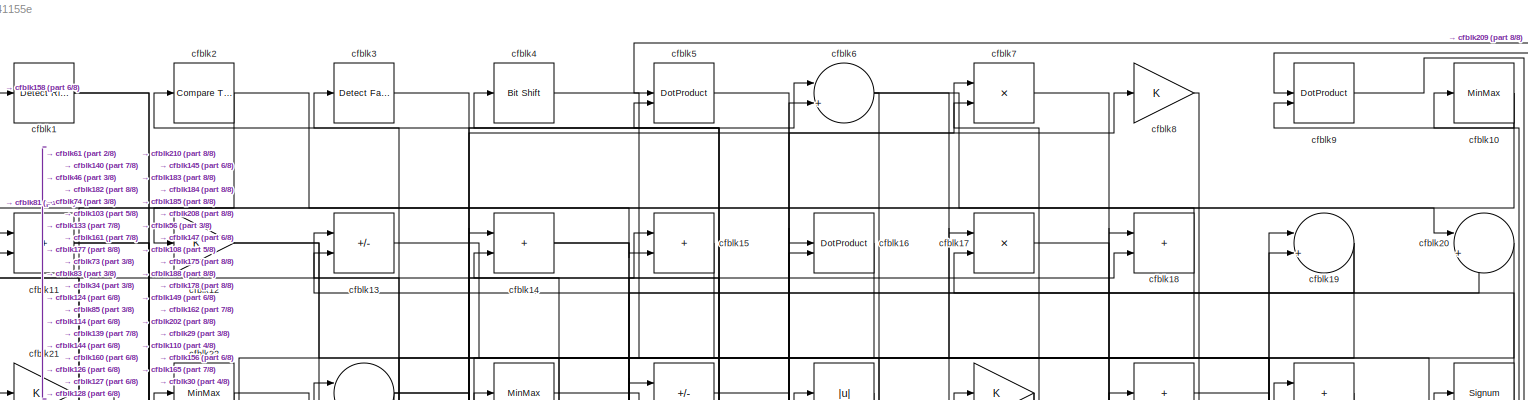
[diagram: root canvas - part 1/8, full width, top band]
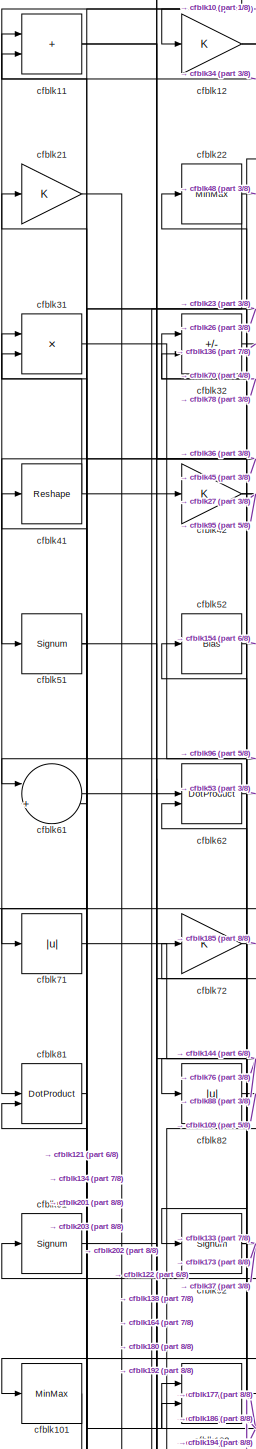
[diagram: root canvas - part 2/8, top left region]
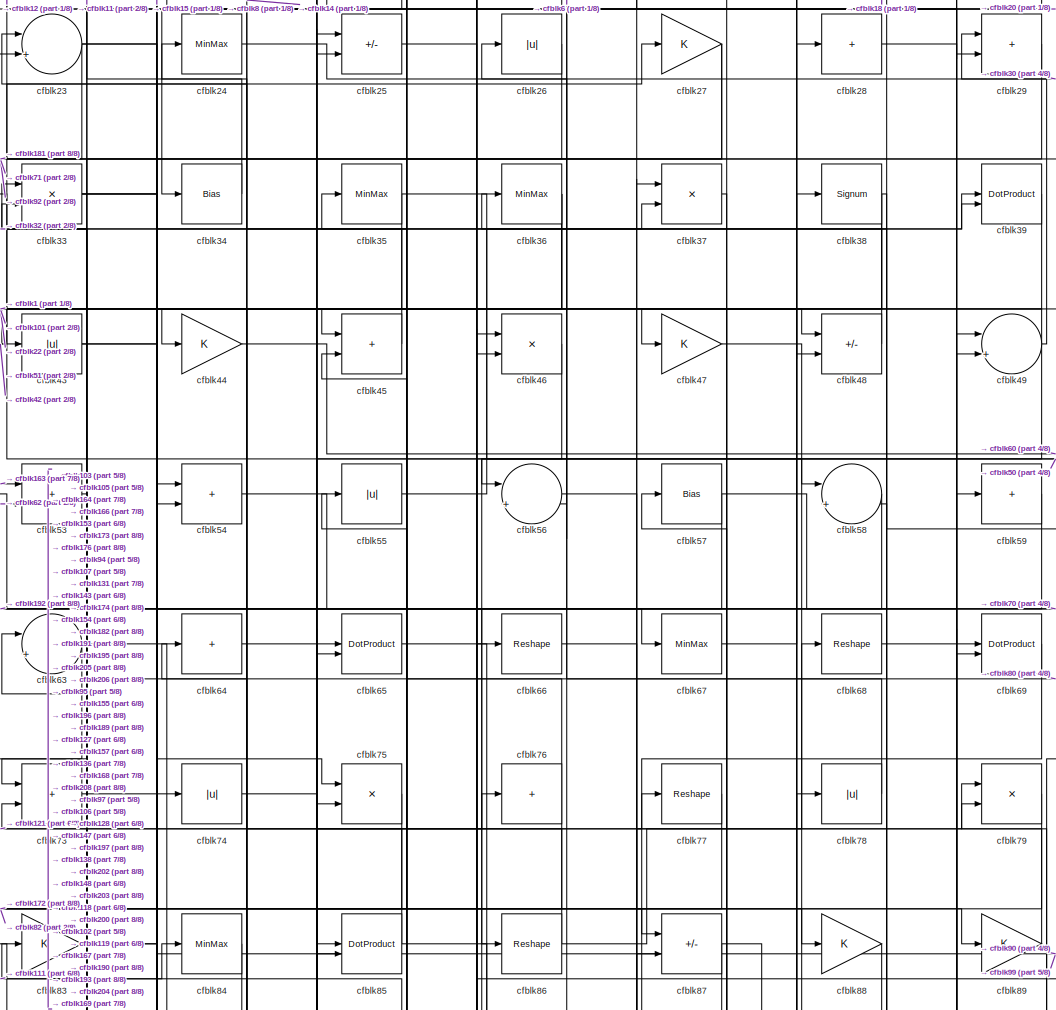
[diagram: root canvas - part 3/8, top center region]
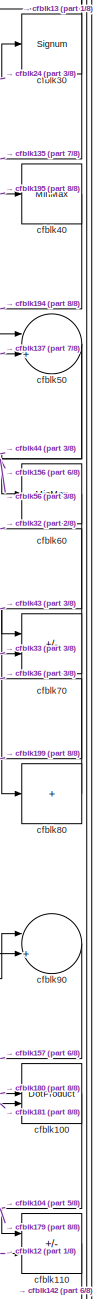
[diagram: root canvas - part 4/8, top right region]
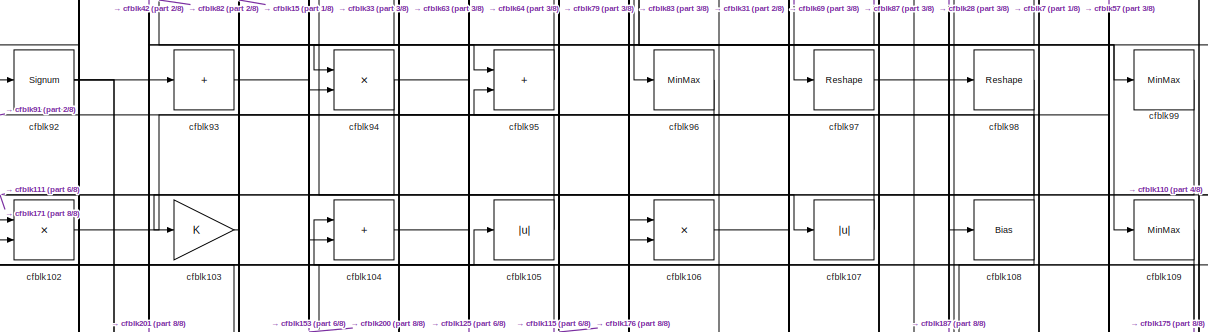
[diagram: root canvas - part 5/8, full width, middle band]
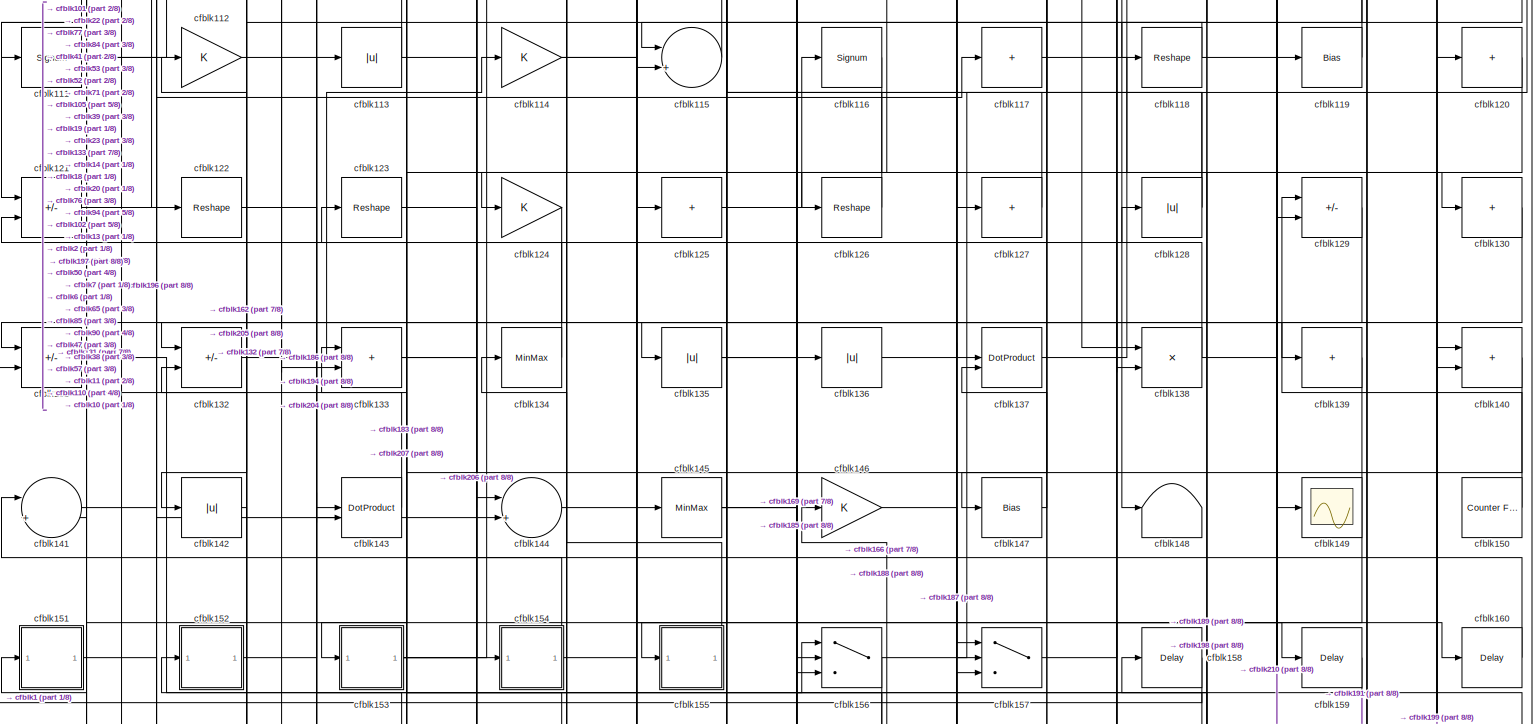
[diagram: root canvas - part 6/8, full width, middle band]
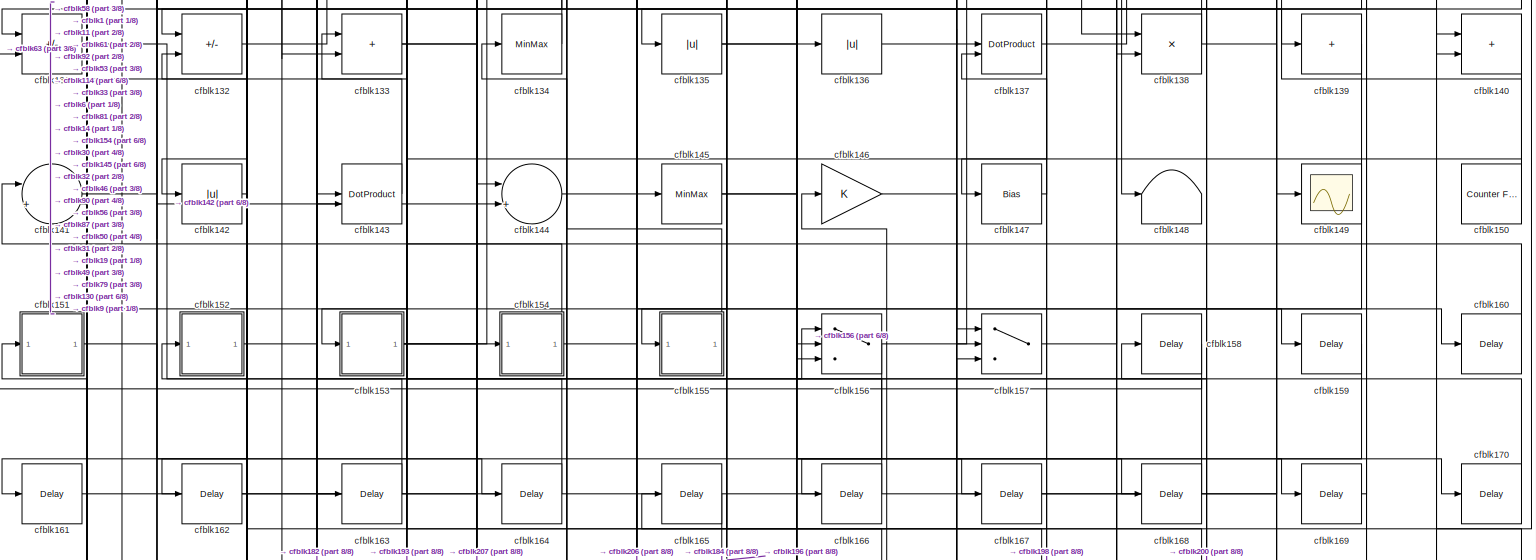
[diagram: root canvas - part 7/8, full width, bottom band]
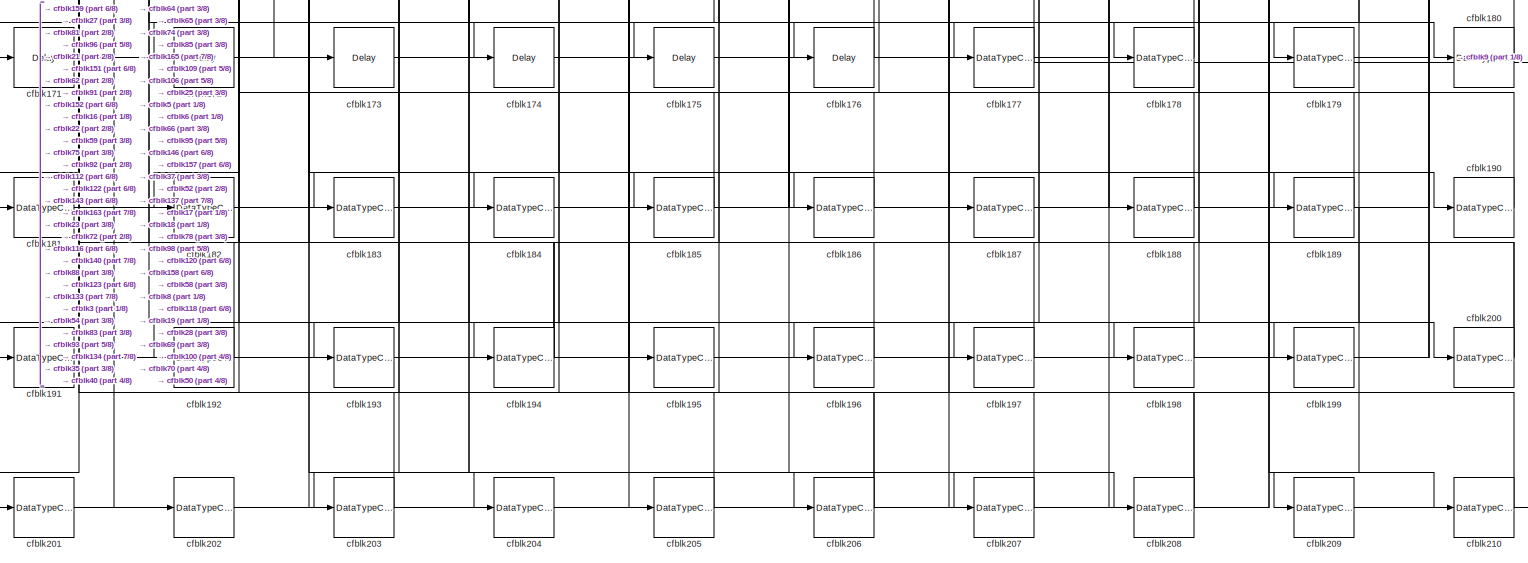
[diagram: root canvas - part 8/8, full width, bottom band]
MODEL slx_6e055541155e
KIND model
CONFIG AbsTol = auto
CONFIG EnableMultiTasking = off
CONFIG FixedStep = auto
CONFIG MaxStep = auto
CONFIG MinStep = auto
CONFIG RelTol = 1e-3
CONFIG SampleTimeConstraint = Unconstrained
CONFIG SolverName = VariableStepAuto
CONFIG StartTime = 0.0
CONFIG StopTime = 10.0
BLOCK [Reference] cfblk1  REF=hdlsllib/Logic and Bit
Operations/Detect Rise
Nonnegative
  SourceBlock = hdlsllib/Logic and Bit\nOperations/Detect Rise\nNonnegative
  SourceType = Detect Rise Nonnegative
BLOCK [MinMax] cfblk10
BLOCK [DotProduct] cfblk100
  OutDataTypeStr = Inherit: Inherit via internal rule
BLOCK [MinMax] cfblk101
BLOCK [Product] cfblk102
  Inputs = */
  RndMeth = Zero
  SaturateOnIntegerOverflow = on
BLOCK [Gain] cfblk103
BLOCK [Sum] cfblk104
  IconShape = rectangular
BLOCK [Abs] cfblk105
  SaturateOnIntegerOverflow = off
BLOCK [Product] cfblk106
  Inputs = */
  RndMeth = Zero
  SaturateOnIntegerOverflow = on
BLOCK [Abs] cfblk107
  SaturateOnIntegerOverflow = off
BLOCK [Bias] cfblk108
  Bias = 0.0
  SaturateOnIntegerOverflow = off
BLOCK [MinMax] cfblk109
BLOCK [Sum] cfblk11
  IconShape = rectangular
BLOCK [Sum] cfblk110
  IconShape = rectangular
  Inputs = +-
BLOCK [Signum] cfblk111
BLOCK [Gain] cfblk112
BLOCK [Abs] cfblk113
  SaturateOnIntegerOverflow = off
BLOCK [Gain] cfblk114
BLOCK [Sum] cfblk115
  Inputs = |++
BLOCK [Signum] cfblk116
BLOCK [Sum] cfblk117
  IconShape = rectangular
  Inputs = +
BLOCK [Reshape] cfblk118
BLOCK [Bias] cfblk119
  Bias = 0.0
  SaturateOnIntegerOverflow = off
BLOCK [Gain] cfblk12
BLOCK [Sum] cfblk120
  IconShape = rectangular
  Inputs = +
BLOCK [Sum] cfblk121
  IconShape = rectangular
  Inputs = +-
BLOCK [Reshape] cfblk122
BLOCK [Reshape] cfblk123
BLOCK [Gain] cfblk124
BLOCK [Sum] cfblk125
  IconShape = rectangular
  Inputs = +
BLOCK [Reshape] cfblk126
BLOCK [Sum] cfblk127
  IconShape = rectangular
  Inputs = +
BLOCK [Abs] cfblk128
  SaturateOnIntegerOverflow = off
BLOCK [Sum] cfblk129
  IconShape = rectangular
  Inputs = +-
BLOCK [Sum] cfblk13
  IconShape = rectangular
  Inputs = +-
BLOCK [Sum] cfblk130
  IconShape = rectangular
  Inputs = +
BLOCK [Sum] cfblk131
  IconShape = rectangular
  Inputs = +-
BLOCK [Sum] cfblk132
  IconShape = rectangular
  Inputs = +-
BLOCK [Sum] cfblk133
  IconShape = rectangular
BLOCK [MinMax] cfblk134
BLOCK [Abs] cfblk135
  SaturateOnIntegerOverflow = off
BLOCK [Abs] cfblk136
  SaturateOnIntegerOverflow = off
BLOCK [DotProduct] cfblk137
  OutDataTypeStr = Inherit: Inherit via internal rule
BLOCK [Product] cfblk138
  Inputs = */
  RndMeth = Zero
  SaturateOnIntegerOverflow = on
BLOCK [Sum] cfblk139
  IconShape = rectangular
  Inputs = +
BLOCK [Sum] cfblk14
  IconShape = rectangular
BLOCK [Sum] cfblk140
  IconShape = rectangular
BLOCK [Sum] cfblk141
  Inputs = |++
BLOCK [Abs] cfblk142
  SaturateOnIntegerOverflow = off
BLOCK [DotProduct] cfblk143
  OutDataTypeStr = Inherit: Inherit via internal rule
BLOCK [Sum] cfblk144
  Inputs = |++
BLOCK [MinMax] cfblk145
BLOCK [Gain] cfblk146
BLOCK [Bias] cfblk147
  Bias = 0.0
  SaturateOnIntegerOverflow = off
BLOCK [Terminator] cfblk148
BLOCK [Scope] cfblk149
  Floating = off
  NumInputPorts = 1
  ScopeSpecificationString = Simulink.scopes.TimeScopeBlockCfg('CurrentConfiguration', extmgr.ConfigurationSet(extmgr.Configuration('Core','General UI',true),extmgr.Configuration('Core','Source UI',true),extmgr.Configuration('Sources','WiredSimulink',true,'DataLoggingVariableName','ScopeData2','DataLoggingSaveFormat','Array','DataLoggingLimitDataPoints',true,'DataLoggingDecimation','1'),extmgr.Configuration('Visuals','Time Do...<+868ch>
BLOCK [Sum] cfblk15
  IconShape = rectangular
BLOCK [Reference] cfblk150  REF=hdlsllib/Sources/Counter
Free-Running
  SourceBlock = hdlsllib/Sources/Counter\nFree-Running
  SourceType = Counter Free-Running
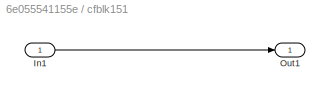
BLOCK [SubSystem] cfblk151
  LibrarySourceBlock = hdlsllib/Ports &\nSubsystems/Subsystem
BLOCK [Inport] cfblk151/In1
BLOCK [Outport] cfblk151/Out1
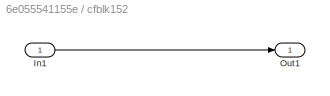
BLOCK [SubSystem] cfblk152
  LibrarySourceBlock = hdlsllib/Ports &\nSubsystems/Subsystem
BLOCK [Inport] cfblk152/In1
BLOCK [Outport] cfblk152/Out1
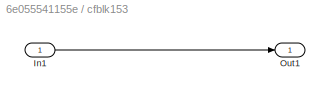
BLOCK [SubSystem] cfblk153
  LibrarySourceBlock = hdlsllib/Ports &\nSubsystems/Subsystem
BLOCK [Inport] cfblk153/In1
BLOCK [Outport] cfblk153/Out1
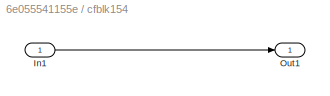
BLOCK [SubSystem] cfblk154
  LibrarySourceBlock = hdlsllib/Ports &\nSubsystems/Subsystem
BLOCK [Inport] cfblk154/In1
BLOCK [Outport] cfblk154/Out1
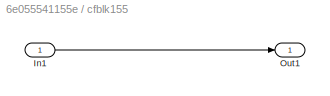
BLOCK [SubSystem] cfblk155
  LibrarySourceBlock = hdlsllib/Ports &\nSubsystems/Subsystem
BLOCK [Inport] cfblk155/In1
BLOCK [Outport] cfblk155/Out1
BLOCK [Switch] cfblk156
  InputSameDT = off
  SaturateOnIntegerOverflow = off
BLOCK [Switch] cfblk157
  InputSameDT = off
  SaturateOnIntegerOverflow = off
BLOCK [Delay] cfblk158
  InputPortMap = u0
  SampleTime = 1
BLOCK [Delay] cfblk159
  InputPortMap = u0
  SampleTime = 1
BLOCK [DotProduct] cfblk16
  OutDataTypeStr = Inherit: Inherit via internal rule
BLOCK [Delay] cfblk160
  InputPortMap = u0
  SampleTime = 1
BLOCK [Delay] cfblk161
  InputPortMap = u0
  SampleTime = 1
BLOCK [Delay] cfblk162
  InputPortMap = u0
  SampleTime = 1
BLOCK [Delay] cfblk163
  InputPortMap = u0
  SampleTime = 1
BLOCK [Delay] cfblk164
  InputPortMap = u0
  SampleTime = 1
BLOCK [Delay] cfblk165
  InputPortMap = u0
  SampleTime = 1
BLOCK [Delay] cfblk166
  InputPortMap = u0
  SampleTime = 1
BLOCK [Delay] cfblk167
  InputPortMap = u0
  SampleTime = 1
BLOCK [Delay] cfblk168
  InputPortMap = u0
  SampleTime = 1
BLOCK [Delay] cfblk169
  InputPortMap = u0
  SampleTime = 1
BLOCK [Product] cfblk17
  Inputs = */
  RndMeth = Zero
  SaturateOnIntegerOverflow = on
BLOCK [Delay] cfblk170
  InputPortMap = u0
  SampleTime = 1
BLOCK [Delay] cfblk171
  InputPortMap = u0
  SampleTime = 1
BLOCK [Delay] cfblk172
  InputPortMap = u0
  SampleTime = 1
BLOCK [Delay] cfblk173
  InputPortMap = u0
  SampleTime = 1
BLOCK [Delay] cfblk174
  InputPortMap = u0
  SampleTime = 1
BLOCK [Delay] cfblk175
  InputPortMap = u0
  SampleTime = 1
BLOCK [Delay] cfblk176
  InputPortMap = u0
  SampleTime = 1
BLOCK [DataTypeConversion] cfblk177
  RndMeth = Floor
  SaturateOnIntegerOverflow = off
BLOCK [DataTypeConversion] cfblk178
  OutDataTypeStr = uint8
  RndMeth = Floor
  SaturateOnIntegerOverflow = off
BLOCK [DataTypeConversion] cfblk179
  OutDataTypeStr = uint8
  RndMeth = Floor
  SaturateOnIntegerOverflow = off
BLOCK [Sum] cfblk18
  IconShape = rectangular
BLOCK [DataTypeConversion] cfblk180
  OutDataTypeStr = uint8
  RndMeth = Floor
  SaturateOnIntegerOverflow = off
BLOCK [DataTypeConversion] cfblk181
  OutDataTypeStr = uint8
  RndMeth = Floor
  SaturateOnIntegerOverflow = off
BLOCK [DataTypeConversion] cfblk182
  RndMeth = Floor
  SaturateOnIntegerOverflow = off
BLOCK [DataTypeConversion] cfblk183
  OutDataTypeStr = uint8
  RndMeth = Floor
  SaturateOnIntegerOverflow = off
BLOCK [DataTypeConversion] cfblk184
  OutDataTypeStr = uint8
  RndMeth = Floor
  SaturateOnIntegerOverflow = off
BLOCK [DataTypeConversion] cfblk185
  RndMeth = Floor
  SaturateOnIntegerOverflow = off
BLOCK [DataTypeConversion] cfblk186
  OutDataTypeStr = uint8
  RndMeth = Floor
  SaturateOnIntegerOverflow = off
BLOCK [DataTypeConversion] cfblk187
  OutDataTypeStr = uint8
  RndMeth = Floor
  SaturateOnIntegerOverflow = off
BLOCK [DataTypeConversion] cfblk188
  OutDataTypeStr = uint8
  RndMeth = Floor
  SaturateOnIntegerOverflow = off
BLOCK [DataTypeConversion] cfblk189
  RndMeth = Floor
  SaturateOnIntegerOverflow = off
BLOCK [Sum] cfblk19
  Inputs = |++
BLOCK [DataTypeConversion] cfblk190
  OutDataTypeStr = uint8
  RndMeth = Floor
  SaturateOnIntegerOverflow = off
BLOCK [DataTypeConversion] cfblk191
  OutDataTypeStr = uint8
  RndMeth = Floor
  SaturateOnIntegerOverflow = off
BLOCK [DataTypeConversion] cfblk192
  OutDataTypeStr = uint8
  RndMeth = Floor
  SaturateOnIntegerOverflow = off
BLOCK [DataTypeConversion] cfblk193
  OutDataTypeStr = uint8
  RndMeth = Floor
  SaturateOnIntegerOverflow = off
BLOCK [DataTypeConversion] cfblk194
  RndMeth = Floor
  SaturateOnIntegerOverflow = off
BLOCK [DataTypeConversion] cfblk195
  OutDataTypeStr = uint8
  RndMeth = Floor
  SaturateOnIntegerOverflow = off
BLOCK [DataTypeConversion] cfblk196
  RndMeth = Floor
  SaturateOnIntegerOverflow = off
BLOCK [DataTypeConversion] cfblk197
  OutDataTypeStr = uint8
  RndMeth = Floor
  SaturateOnIntegerOverflow = off
BLOCK [DataTypeConversion] cfblk198
  OutDataTypeStr = uint8
  RndMeth = Floor
  SaturateOnIntegerOverflow = off
BLOCK [DataTypeConversion] cfblk199
  OutDataTypeStr = uint8
  RndMeth = Floor
  SaturateOnIntegerOverflow = off
BLOCK [Reference] cfblk2  REF=hdlsllib/Logic and Bit
Operations/Compare
To Constant
  SourceBlock = hdlsllib/Logic and Bit\nOperations/Compare\nTo Constant
  SourceType = Compare To Constant
BLOCK [Sum] cfblk20
  Inputs = |++
BLOCK [DataTypeConversion] cfblk200
  RndMeth = Floor
  SaturateOnIntegerOverflow = off
BLOCK [DataTypeConversion] cfblk201
  OutDataTypeStr = uint8
  RndMeth = Floor
  SaturateOnIntegerOverflow = off
BLOCK [DataTypeConversion] cfblk202
  RndMeth = Floor
  SaturateOnIntegerOverflow = off
BLOCK [DataTypeConversion] cfblk203
  OutDataTypeStr = uint8
  RndMeth = Floor
  SaturateOnIntegerOverflow = off
BLOCK [DataTypeConversion] cfblk204
  RndMeth = Floor
  SaturateOnIntegerOverflow = off
BLOCK [DataTypeConversion] cfblk205
  OutDataTypeStr = uint8
  RndMeth = Floor
  SaturateOnIntegerOverflow = off
BLOCK [DataTypeConversion] cfblk206
  RndMeth = Floor
  SaturateOnIntegerOverflow = off
BLOCK [DataTypeConversion] cfblk207
  OutDataTypeStr = uint8
  RndMeth = Floor
  SaturateOnIntegerOverflow = off
BLOCK [DataTypeConversion] cfblk208
  RndMeth = Floor
  SaturateOnIntegerOverflow = off
BLOCK [DataTypeConversion] cfblk209
  OutDataTypeStr = uint8
  RndMeth = Floor
  SaturateOnIntegerOverflow = off
BLOCK [Gain] cfblk21
BLOCK [DataTypeConversion] cfblk210
  OutDataTypeStr = uint8
  RndMeth = Floor
  SaturateOnIntegerOverflow = off
BLOCK [MinMax] cfblk22
BLOCK [Sum] cfblk23
  Inputs = |++
BLOCK [MinMax] cfblk24
BLOCK [Sum] cfblk25
  IconShape = rectangular
  Inputs = +-
BLOCK [Abs] cfblk26
  SaturateOnIntegerOverflow = off
BLOCK [Gain] cfblk27
BLOCK [Sum] cfblk28
  IconShape = rectangular
  Inputs = +
BLOCK [Sum] cfblk29
  IconShape = rectangular
BLOCK [Reference] cfblk3  REF=hdlsllib/Logic and Bit
Operations/Detect Fall
Negative
  SourceBlock = hdlsllib/Logic and Bit\nOperations/Detect Fall\nNegative
  SourceType = Detect Fall Negative
BLOCK [Signum] cfblk30
BLOCK [Product] cfblk31
  Inputs = */
  RndMeth = Zero
  SaturateOnIntegerOverflow = on
BLOCK [Sum] cfblk32
  IconShape = rectangular
  Inputs = +-
BLOCK [Product] cfblk33
  Inputs = */
  RndMeth = Zero
  SaturateOnIntegerOverflow = on
BLOCK [Bias] cfblk34
  Bias = 0.0
  SaturateOnIntegerOverflow = off
BLOCK [MinMax] cfblk35
BLOCK [MinMax] cfblk36
BLOCK [Product] cfblk37
  Inputs = */
  RndMeth = Zero
  SaturateOnIntegerOverflow = on
BLOCK [Signum] cfblk38
BLOCK [DotProduct] cfblk39
  OutDataTypeStr = Inherit: Inherit via internal rule
BLOCK [Reference] cfblk4  REF=hdlsllib/Logic and Bit
Operations/Bit Shift
  SourceBlock = hdlsllib/Logic and Bit\nOperations/Bit Shift
  SourceType = Bit Shift
BLOCK [MinMax] cfblk40
BLOCK [Reshape] cfblk41
BLOCK [Gain] cfblk42
BLOCK [Abs] cfblk43
  SaturateOnIntegerOverflow = off
BLOCK [Gain] cfblk44
BLOCK [Sum] cfblk45
  IconShape = rectangular
BLOCK [Product] cfblk46
  Inputs = */
  RndMeth = Zero
  SaturateOnIntegerOverflow = on
BLOCK [Gain] cfblk47
BLOCK [Sum] cfblk48
  IconShape = rectangular
  Inputs = +-
BLOCK [Sum] cfblk49
  Inputs = |++
BLOCK [DotProduct] cfblk5
  OutDataTypeStr = Inherit: Inherit via internal rule
BLOCK [Sum] cfblk50
  Inputs = |++
BLOCK [Signum] cfblk51
BLOCK [Bias] cfblk52
  Bias = 0.0
  SaturateOnIntegerOverflow = off
BLOCK [Sum] cfblk53
  IconShape = rectangular
BLOCK [Sum] cfblk54
  IconShape = rectangular
BLOCK [Abs] cfblk55
  SaturateOnIntegerOverflow = off
BLOCK [Sum] cfblk56
  Inputs = |++
BLOCK [Bias] cfblk57
  Bias = 0.0
  SaturateOnIntegerOverflow = off
BLOCK [Sum] cfblk58
  Inputs = |++
BLOCK [Sum] cfblk59
  IconShape = rectangular
  Inputs = +
BLOCK [Sum] cfblk6
  Inputs = |++
BLOCK [MinMax] cfblk60
BLOCK [Sum] cfblk61
  Inputs = |++
BLOCK [DotProduct] cfblk62
  OutDataTypeStr = Inherit: Inherit via internal rule
BLOCK [Sum] cfblk63
  Inputs = |++
BLOCK [Sum] cfblk64
  IconShape = rectangular
  Inputs = +
BLOCK [DotProduct] cfblk65
  OutDataTypeStr = Inherit: Inherit via internal rule
BLOCK [Reshape] cfblk66
BLOCK [MinMax] cfblk67
BLOCK [Reshape] cfblk68
BLOCK [DotProduct] cfblk69
  OutDataTypeStr = Inherit: Inherit via internal rule
BLOCK [Product] cfblk7
  Inputs = */
  RndMeth = Zero
  SaturateOnIntegerOverflow = on
BLOCK [Sum] cfblk70
  IconShape = rectangular
  Inputs = +-
BLOCK [Abs] cfblk71
  SaturateOnIntegerOverflow = off
BLOCK [Gain] cfblk72
BLOCK [Sum] cfblk73
  IconShape = rectangular
BLOCK [Abs] cfblk74
  SaturateOnIntegerOverflow = off
BLOCK [Product] cfblk75
  Inputs = */
  RndMeth = Zero
  SaturateOnIntegerOverflow = on
BLOCK [Sum] cfblk76
  IconShape = rectangular
  Inputs = +
BLOCK [Reshape] cfblk77
BLOCK [Abs] cfblk78
  SaturateOnIntegerOverflow = off
BLOCK [Product] cfblk79
  Inputs = */
  RndMeth = Zero
  SaturateOnIntegerOverflow = on
BLOCK [Gain] cfblk8
BLOCK [Sum] cfblk80
  IconShape = rectangular
  Inputs = +
BLOCK [DotProduct] cfblk81
  OutDataTypeStr = Inherit: Inherit via internal rule
BLOCK [Abs] cfblk82
  SaturateOnIntegerOverflow = off
BLOCK [Gain] cfblk83
BLOCK [MinMax] cfblk84
BLOCK [DotProduct] cfblk85
  OutDataTypeStr = Inherit: Inherit via internal rule
BLOCK [Reshape] cfblk86
BLOCK [Sum] cfblk87
  IconShape = rectangular
  Inputs = +-
BLOCK [Gain] cfblk88
BLOCK [Gain] cfblk89
BLOCK [DotProduct] cfblk9
  OutDataTypeStr = Inherit: Inherit via internal rule
BLOCK [Sum] cfblk90
  Inputs = |++
BLOCK [Signum] cfblk91
BLOCK [Signum] cfblk92
BLOCK [Sum] cfblk93
  IconShape = rectangular
  Inputs = +
BLOCK [Product] cfblk94
  Inputs = */
  RndMeth = Zero
  SaturateOnIntegerOverflow = on
BLOCK [Sum] cfblk95
  IconShape = rectangular
BLOCK [MinMax] cfblk96
BLOCK [Reshape] cfblk97
BLOCK [Reshape] cfblk98
BLOCK [MinMax] cfblk99
LINE cfblk100:1 -> cfblk179:1
LINE cfblk101:1 -> cfblk121:1
LINE cfblk102:1 -> cfblk69:2
LINE cfblk103:1 -> cfblk63:2
LINE cfblk104:1 -> cfblk110:1
LINE cfblk105:1 -> cfblk33:1
LINE cfblk106:1 -> cfblk79:1
LINE cfblk107:1 -> cfblk64:1
NET cfblk108:1 -> cfblk102:2, cfblk91:1
LINE cfblk109:1 -> cfblk175:1
NET cfblk10:1 -> cfblk61:1, cfblk9:2
LINE cfblk110:1 -> cfblk142:1
NET cfblk111:1 -> cfblk144:2, cfblk84:1
LINE cfblk112:1 -> cfblk204:1
NET cfblk113:1 -> cfblk129:2, cfblk41:1
NET cfblk114:1 -> cfblk115:2, cfblk18:2
LINE cfblk115:1 -> cfblk102:1
LINE cfblk116:1 -> cfblk183:1
LINE cfblk117:1 -> cfblk130:1
NET cfblk118:1 -> cfblk115:1, cfblk210:1
LINE cfblk119:1 -> cfblk11:2
NET cfblk11:1 -> cfblk138:2, cfblk45:1
LINE cfblk120:1 -> cfblk198:1
LINE cfblk121:1 -> cfblk77:1
LINE cfblk122:1 -> cfblk186:1
LINE cfblk123:1 -> cfblk206:1
LINE cfblk124:1 -> cfblk141:2
LINE cfblk125:1 -> cfblk116:1
LINE cfblk126:1 -> cfblk2:1
LINE cfblk127:1 -> cfblk4:1
NET cfblk128:1 -> cfblk13:1, cfblk57:1
LINE cfblk129:1 -> cfblk156:2
NET cfblk12:1 -> cfblk110:2, cfblk74:1
LINE cfblk130:1 -> cfblk132:1
LINE cfblk131:1 -> cfblk156:1
LINE cfblk132:1 -> cfblk114:1
NET cfblk133:1 -> cfblk207:1, cfblk6:1
LINE cfblk134:1 -> cfblk81:2
NET cfblk135:1 -> cfblk167:1, cfblk90:1
LINE cfblk136:1 -> cfblk87:2
LINE cfblk137:1 -> cfblk50:2
NET cfblk138:1 -> cfblk170:1, cfblk31:2
LINE cfblk139:1 -> cfblk161:1
LINE cfblk13:1 -> cfblk145:1
LINE cfblk140:1 -> cfblk193:1
LINE cfblk141:1 -> cfblk117:1
LINE cfblk142:1 -> cfblk162:1
LINE cfblk143:1 -> cfblk121:2
LINE cfblk144:1 -> cfblk20:2
NET cfblk145:1 -> cfblk169:1, cfblk7:1
LINE cfblk146:1 -> cfblk187:1
LINE cfblk147:1 -> cfblk7:2
NET cfblk14:1 -> cfblk139:1, cfblk160:1
LINE cfblk150:1 -> cfblk129:1
LINE cfblk151/In1:1 -> cfblk151/Out1:1
LINE cfblk151:1 -> cfblk196:1
LINE cfblk152/In1:1 -> cfblk152/Out1:1
LINE cfblk152:1 -> cfblk113:1
LINE cfblk153/In1:1 -> cfblk153/Out1:1
NET cfblk153:1 -> cfblk105:1, cfblk128:1, cfblk39:2
LINE cfblk154/In1:1 -> cfblk154/Out1:1
NET cfblk154:1 -> cfblk133:1, cfblk76:1
LINE cfblk155/In1:1 -> cfblk155/Out1:1
LINE cfblk155:1 -> cfblk23:1
NET cfblk156:1 -> cfblk10:1, cfblk166:1
LINE cfblk157:1 -> cfblk159:1
LINE cfblk158:1 -> cfblk1:1
LINE cfblk159:1 -> cfblk191:1
LINE cfblk15:1 -> cfblk103:1
LINE cfblk160:1 -> cfblk141:1
LINE cfblk161:1 -> cfblk14:1
LINE cfblk162:1 -> cfblk19:1
LINE cfblk163:1 -> cfblk53:1
LINE cfblk164:1 -> cfblk63:1
LINE cfblk165:1 -> cfblk184:1
LINE cfblk166:1 -> cfblk33:2
LINE cfblk167:1 -> cfblk49:2
LINE cfblk168:1 -> cfblk46:1
LINE cfblk169:1 -> cfblk79:2
LINE cfblk16:1 -> cfblk182:1
LINE cfblk170:1 -> cfblk132:2
LINE cfblk171:1 -> cfblk106:1
LINE cfblk172:1 -> cfblk23:2
LINE cfblk173:1 -> cfblk54:1
LINE cfblk174:1 -> cfblk37:1
LINE cfblk175:1 -> cfblk18:1
LINE cfblk176:1 -> cfblk95:2
NET cfblk177:1 -> cfblk52:1, cfblk9:1
LINE cfblk178:1 -> cfblk3:1
LINE cfblk179:1 -> cfblk50:1
LINE cfblk17:1 -> cfblk188:1
LINE cfblk180:1 -> cfblk100:1
LINE cfblk181:1 -> cfblk100:2
NET cfblk182:1 -> cfblk163:1, cfblk65:2, cfblk66:1
LINE cfblk183:1 -> cfblk16:1
LINE cfblk184:1 -> cfblk16:2
NET cfblk185:1 -> cfblk152:1, cfblk6:2
LINE cfblk186:1 -> cfblk72:1
LINE cfblk187:1 -> cfblk98:1
LINE cfblk188:1 -> cfblk146:1
NET cfblk189:1 -> cfblk158:1, cfblk209:1
NET cfblk18:1 -> cfblk12:1, cfblk56:1
LINE cfblk190:1 -> cfblk25:1
LINE cfblk191:1 -> cfblk25:2
LINE cfblk192:1 -> cfblk62:1
LINE cfblk193:1 -> cfblk59:1
NET cfblk194:1 -> cfblk143:1, cfblk22:1, cfblk62:2
LINE cfblk195:1 -> cfblk40:1
NET cfblk196:1 -> cfblk140:1, cfblk35:1
LINE cfblk197:1 -> cfblk151:1
LINE cfblk198:1 -> cfblk137:2
LINE cfblk199:1 -> cfblk120:1
NET cfblk19:1 -> cfblk124:1, cfblk17:2
NET cfblk1:1 -> cfblk140:2, cfblk46:2
NET cfblk200:1 -> cfblk137:1, cfblk58:2
LINE cfblk201:1 -> cfblk93:1
NET cfblk202:1 -> cfblk19:2, cfblk78:1
LINE cfblk203:1 -> cfblk21:1
NET cfblk204:1 -> cfblk157:3, cfblk69:1
LINE cfblk205:1 -> cfblk112:1
NET cfblk206:1 -> cfblk134:1, cfblk65:1
LINE cfblk207:1 -> cfblk123:1
NET cfblk208:1 -> cfblk17:1, cfblk85:1
LINE cfblk209:1 -> cfblk5:1
LINE cfblk20:1 -> cfblk34:1
LINE cfblk210:1 -> cfblk5:2
LINE cfblk21:1 -> cfblk202:1
NET cfblk22:1 -> cfblk122:1, cfblk48:2
NET cfblk23:1 -> cfblk75:1, cfblk87:1, cfblk92:1
LINE cfblk24:1 -> cfblk30:1
LINE cfblk25:1 -> cfblk189:1
LINE cfblk26:1 -> cfblk71:1
NET cfblk27:1 -> cfblk181:1, cfblk54:2
LINE cfblk28:1 -> cfblk190:1
LINE cfblk29:1 -> cfblk73:1
NET cfblk2:1 -> cfblk15:2, cfblk81:1
NET cfblk30:1 -> cfblk135:1, cfblk13:2
LINE cfblk31:1 -> cfblk96:1
LINE cfblk32:1 -> cfblk136:1
NET cfblk33:1 -> cfblk70:2, cfblk90:2, cfblk99:1
LINE cfblk34:1 -> cfblk11:1
NET cfblk35:1 -> cfblk174:1, cfblk58:1
NET cfblk36:1 -> cfblk101:1, cfblk43:1, cfblk51:1
LINE cfblk37:1 -> cfblk197:1
NET cfblk38:1 -> cfblk118:1, cfblk147:1, cfblk155:1
LINE cfblk39:1 -> cfblk47:1
LINE cfblk3:1 -> cfblk177:1
LINE cfblk40:1 -> cfblk194:1
NET cfblk41:1 -> cfblk31:1, cfblk42:1
NET cfblk42:1 -> cfblk27:1, cfblk95:1
NET cfblk43:1 -> cfblk48:1, cfblk70:1
LINE cfblk44:1 -> cfblk60:1
LINE cfblk45:1 -> cfblk24:1
LINE cfblk46:1 -> cfblk86:1
LINE cfblk47:1 -> cfblk148:1
LINE cfblk48:1 -> cfblk26:1
NET cfblk49:1 -> cfblk29:1, cfblk44:1, cfblk75:2
LINE cfblk4:1 -> cfblk149:1
NET cfblk50:1 -> cfblk156:3, cfblk56:2
NET cfblk51:1 -> cfblk61:2, cfblk88:1
LINE cfblk52:1 -> cfblk154:1
LINE cfblk53:1 -> cfblk153:1
LINE cfblk54:1 -> cfblk67:1
LINE cfblk55:1 -> cfblk39:1
LINE cfblk56:1 -> cfblk168:1
NET cfblk57:1 -> cfblk119:1, cfblk94:2
LINE cfblk58:1 -> cfblk131:1
LINE cfblk59:1 -> cfblk192:1
LINE cfblk5:1 -> cfblk208:1
LINE cfblk60:1 -> cfblk80:1
LINE cfblk61:1 -> cfblk164:1
LINE cfblk62:1 -> cfblk53:2
NET cfblk63:1 -> cfblk107:1, cfblk131:2
LINE cfblk64:1 -> cfblk205:1
LINE cfblk65:1 -> cfblk127:1
LINE cfblk66:1 -> cfblk89:1
LINE cfblk67:1 -> cfblk38:1
LINE cfblk68:1 -> cfblk49:1
LINE cfblk69:1 -> cfblk97:1
NET cfblk6:1 -> cfblk126:1, cfblk20:1, cfblk29:2
NET cfblk70:1 -> cfblk199:1, cfblk32:1
LINE cfblk71:1 -> cfblk144:1
LINE cfblk72:1 -> cfblk185:1
LINE cfblk73:1 -> cfblk15:1
LINE cfblk74:1 -> cfblk195:1
LINE cfblk75:1 -> cfblk172:1
NET cfblk76:1 -> cfblk55:1, cfblk82:1
LINE cfblk77:1 -> cfblk85:2
LINE cfblk78:1 -> cfblk32:2
LINE cfblk79:1 -> cfblk94:1
LINE cfblk7:1 -> cfblk108:1
LINE cfblk80:1 -> cfblk36:1
LINE cfblk81:1 -> cfblk201:1
LINE cfblk82:1 -> cfblk109:1
NET cfblk83:1 -> cfblk176:1, cfblk8:1
LINE cfblk84:1 -> cfblk143:2
NET cfblk85:1 -> cfblk14:2, cfblk157:1
NET cfblk86:1 -> cfblk45:2, cfblk68:1
NET cfblk87:1 -> cfblk106:2, cfblk138:1
LINE cfblk88:1 -> cfblk203:1
LINE cfblk89:1 -> cfblk73:2
LINE cfblk8:1 -> cfblk178:1
LINE cfblk90:1 -> cfblk157:2
LINE cfblk91:1 -> cfblk180:1
NET cfblk92:1 -> cfblk133:2, cfblk173:1, cfblk37:2
LINE cfblk93:1 -> cfblk200:1
NET cfblk94:1 -> cfblk111:1, cfblk125:1
LINE cfblk95:1 -> cfblk83:1
LINE cfblk96:1 -> cfblk171:1
LINE cfblk97:1 -> cfblk28:1
LINE cfblk98:1 -> cfblk104:2
LINE cfblk99:1 -> cfblk104:1
LINE cfblk9:1 -> cfblk165:1
note: NET lines group one-source signal fan-out (src -> all destinations, sorted); 1:1 wires keep LINE
